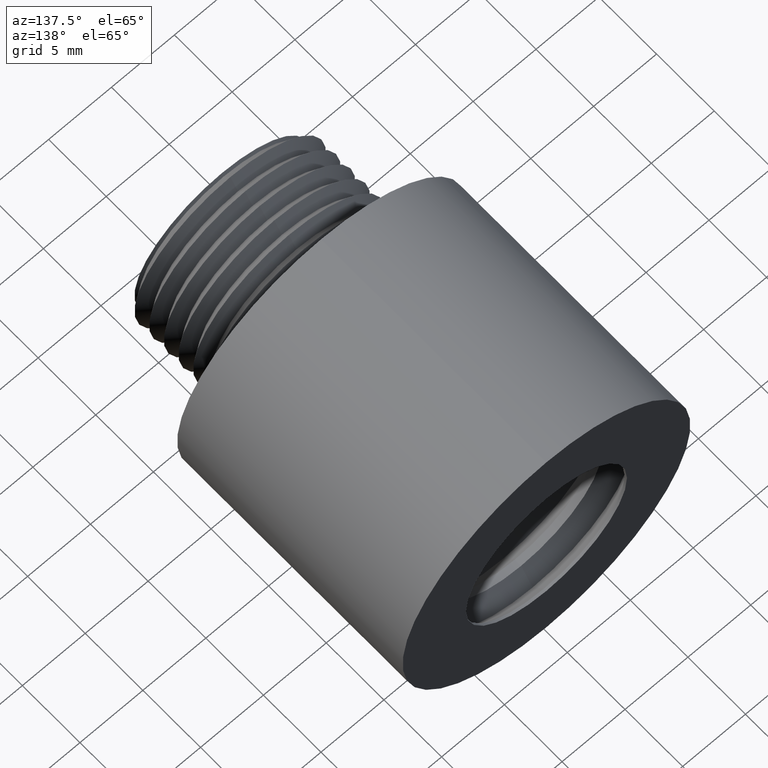
[diagram: clean part render]
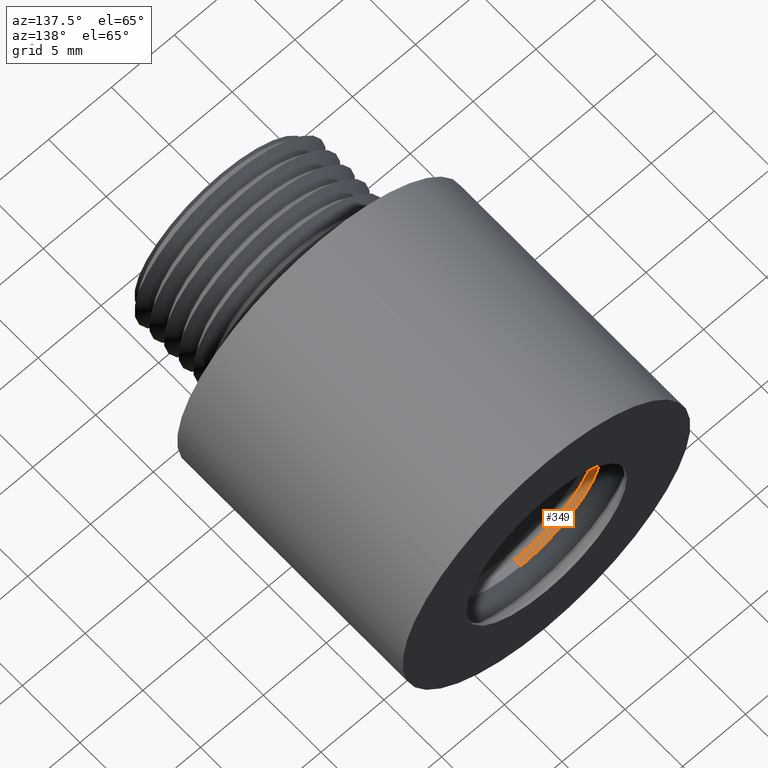
[diagram: same view with one face highlighted and labeled with its STEP entity id]
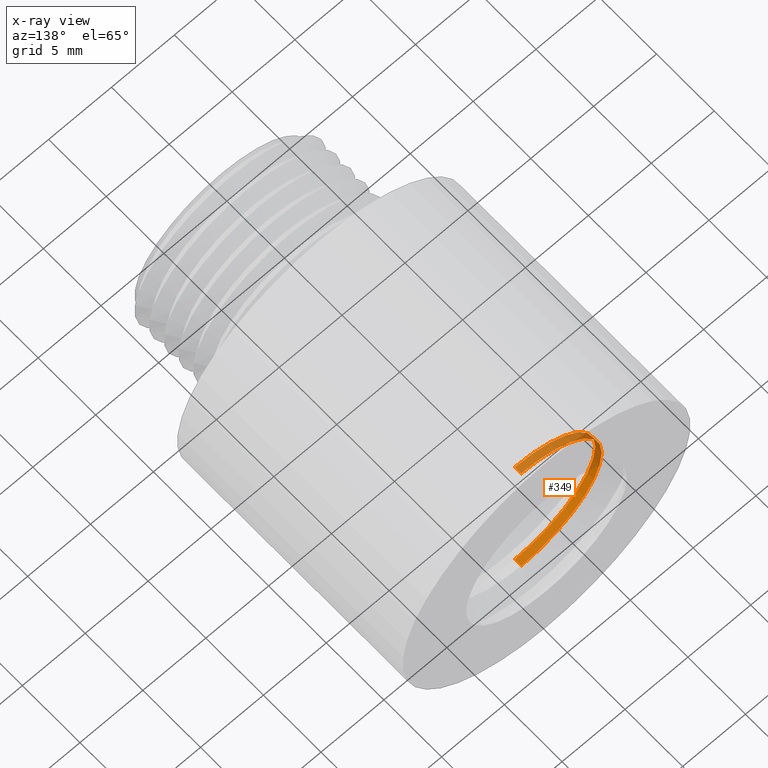
[diagram: x-ray of the same camera — body ghosted, the highlighted face saturated]
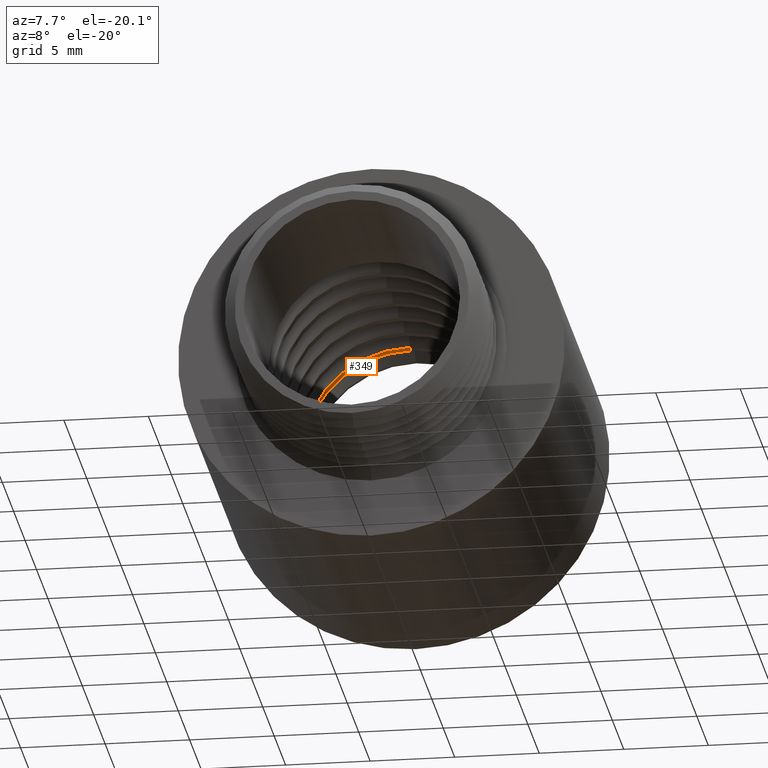
[diagram: same view with one face highlighted and labeled with its STEP entity id]
A machine part, auxiliary view. The second image highlights one B-rep face of the part: STEP entity #349.
The next image is the same camera in x-ray: the body ghosted, the highlighted face saturated — about 45% of this face is hidden behind the body in this view.
A second angle (auxiliary view) of the same face is appended — the face is thin or edge-on in the first view.
In plain terms, the highlighted cylindrical surface (partial cylindrical patch) has radius 6.4008 mm, axis along (-0, -1, -0).
Its self-contained STEP definition (entity closure, byte-faithful):
#41 = EDGE_CURVE ( 'NONE', #69, #67, #592, .T. ) ;
#67 = VERTEX_POINT ( 'NONE', #611 ) ;
#69 = VERTEX_POINT ( 'NONE', #606 ) ;
#349 = ADVANCED_FACE ( 'NONE', ( #1341 ), #1340, .F. ) ;
#350 = EDGE_LOOP ( 'NONE', ( #351, #352, #354, #355 ) ) ;
#351 = ORIENTED_EDGE ( 'NONE', *, *, #1197, .F. ) ;
#352 = ORIENTED_EDGE ( 'NONE', *, *, #353, .T. ) ;
#353 = EDGE_CURVE ( 'NONE', #1196, #67, #1335, .T. ) ;
#354 = ORIENTED_EDGE ( 'NONE', *, *, #41, .F. ) ;
#355 = ORIENTED_EDGE ( 'NONE', *, *, #356, .F. ) ;
#356 = EDGE_CURVE ( 'NONE', #1194, #69, #1391, .T. ) ;
#588 = DIRECTION ( 'NONE',  ( 0.0000000000000000000, 0.0000000000000000000, -1.000000000000000000 ) ) ;
#589 = DIRECTION ( 'NONE',  ( -0.0000000000000000000, 1.000000000000000000, -0.0000000000000000000 ) ) ;
#590 = CARTESIAN_POINT ( 'NONE',  ( 0.0000000000000000000, 1.001868058993573300, 0.0000000000000000000 ) ) ;
#591 = AXIS2_PLACEMENT_3D ( 'NONE', #590, #589, #588 ) ;
#592 = CIRCLE ( 'NONE', #591, 0.2520000000000000000 ) ;
#606 = CARTESIAN_POINT ( 'NONE',  ( 0.0000000000000000000, 1.001868058993573300, -0.2520000000000000000 ) ) ;
#611 = CARTESIAN_POINT ( 'NONE',  ( 3.086109933851330000E-017, 1.001868058993573300, 0.2520000000000000000 ) ) ;
#1194 = VERTEX_POINT ( 'NONE', #1790 ) ;
#1196 = VERTEX_POINT ( 'NONE', #1787 ) ;
#1197 = EDGE_CURVE ( 'NONE', #1196, #1194, #1781, .T. ) ;
#1335 = LINE ( 'NONE', #1394, #1393 ) ;
#1336 = DIRECTION ( 'NONE',  ( 0.0000000000000000000, 0.0000000000000000000, -1.000000000000000000 ) ) ;
#1337 = DIRECTION ( 'NONE',  ( -0.0000000000000000000, -1.000000000000000000, -0.0000000000000000000 ) ) ;
#1338 = CARTESIAN_POINT ( 'NONE',  ( 0.0000000000000000000, 0.0000000000000000000, 0.0000000000000000000 ) ) ;
#1339 = AXIS2_PLACEMENT_3D ( 'NONE', #1338, #1337, #1336 ) ;
#1340 = CYLINDRICAL_SURFACE ( 'NONE', #1339, 0.2520000000000000000 ) ;
#1341 = FACE_OUTER_BOUND ( 'NONE', #350, .T. ) ;
#1388 = DIRECTION ( 'NONE',  ( -0.0000000000000000000, -1.000000000000000000, -0.0000000000000000000 ) ) ;
#1389 = VECTOR ( 'NONE', #1388, 39.37007874015748100 ) ;
#1390 = CARTESIAN_POINT ( 'NONE',  ( 0.0000000000000000000, 0.0000000000000000000, -0.2520000000000000000 ) ) ;
#1391 = LINE ( 'NONE', #1390, #1389 ) ;
#1392 = DIRECTION ( 'NONE',  ( -0.0000000000000000000, -1.000000000000000000, -0.0000000000000000000 ) ) ;
#1393 = VECTOR ( 'NONE', #1392, 39.37007874015748100 ) ;
#1394 = CARTESIAN_POINT ( 'NONE',  ( 3.086109933851330000E-017, 0.0000000000000000000, 0.2520000000000000000 ) ) ;
#1777 = DIRECTION ( 'NONE',  ( 0.0000000000000000000, 0.0000000000000000000, 1.000000000000000000 ) ) ;
#1778 = DIRECTION ( 'NONE',  ( 0.0000000000000000000, -1.000000000000000000, 0.0000000000000000000 ) ) ;
#1779 = CARTESIAN_POINT ( 'NONE',  ( 0.0000000000000000000, 1.023551889149988200, 0.0000000000000000000 ) ) ;
#1780 = AXIS2_PLACEMENT_3D ( 'NONE', #1779, #1778, #1777 ) ;
#1781 = CIRCLE ( 'NONE', #1780, 0.2520000000000000000 ) ;
#1787 = CARTESIAN_POINT ( 'NONE',  ( 3.086109933851330000E-017, 1.023551889149988200, 0.2520000000000000000 ) ) ;
#1790 = CARTESIAN_POINT ( 'NONE',  ( 0.0000000000000000000, 1.023551889149988200, -0.2520000000000000000 ) ) ;